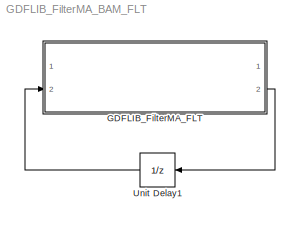
MODEL GDFLIB_FilterMA_BAM_FLT
KIND model
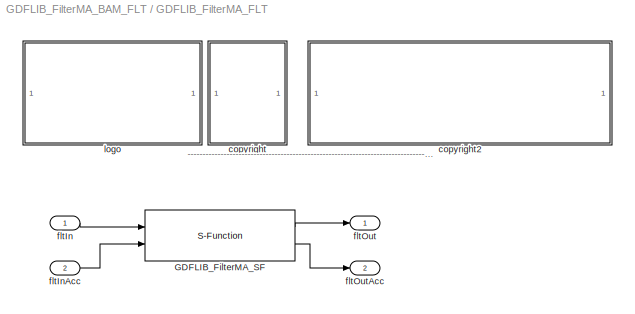
BLOCK [SubSystem] GDFLIB_FilterMA_FLT
  Ports = [2, 2]
  RequestExecContextInheritance = off
  SID = 1
BLOCK [S-Function] GDFLIB_FilterMA_FLT/GDFLIB_FilterMA_SF
  EnableBusSupport = off
  FunctionName = GDFLIB_FilterMA_SF_FLT
  Parameters = fltLambda
  Ports = [2, 2]
  SID = 4
BLOCK [SubSystem] GDFLIB_FilterMA_FLT/<copyright redacted>
  Ports = []
  RequestExecContextInheritance = off
  SID = 5
BLOCK [SubSystem] GDFLIB_FilterMA_FLT/copyright2
  Ports = []
  RequestExecContextInheritance = off
  SID = 6
BLOCK [Inport] GDFLIB_FilterMA_FLT/fltIn
  IconDisplay = Port number
  SID = 2
BLOCK [Inport] GDFLIB_FilterMA_FLT/fltInAcc
  IconDisplay = Port number
  Port = 2
  SID = 3
BLOCK [Outport] GDFLIB_FilterMA_FLT/fltOut
  IconDisplay = Port number
  SID = 8
BLOCK [Outport] GDFLIB_FilterMA_FLT/fltOutAcc
  IconDisplay = Port number
  Port = 2
  SID = 9
BLOCK [SubSystem] GDFLIB_FilterMA_FLT/logo
  Ports = []
  RequestExecContextInheritance = off
  SID = 7
BLOCK [UnitDelay] Unit Delay1
  SID = 11
  SampleTime = -1
ANNOTATION GDFLIB_FilterMA_FLT: ---------------------------------------------------------------------------------------------------------------------------------------------------------------------------------------------------
LINE GDFLIB_FilterMA_FLT/GDFLIB_FilterMA_SF:1 -> GDFLIB_FilterMA_FLT/fltOut:1
LINE GDFLIB_FilterMA_FLT/GDFLIB_FilterMA_SF:2 -> GDFLIB_FilterMA_FLT/fltOutAcc:1
LINE GDFLIB_FilterMA_FLT/fltIn:1 -> GDFLIB_FilterMA_FLT/GDFLIB_FilterMA_SF:1
LINE GDFLIB_FilterMA_FLT/fltInAcc:1 -> GDFLIB_FilterMA_FLT/GDFLIB_FilterMA_SF:2
LINE GDFLIB_FilterMA_FLT:2 -> Unit Delay1:1
LINE Unit Delay1:1 -> GDFLIB_FilterMA_FLT:2
